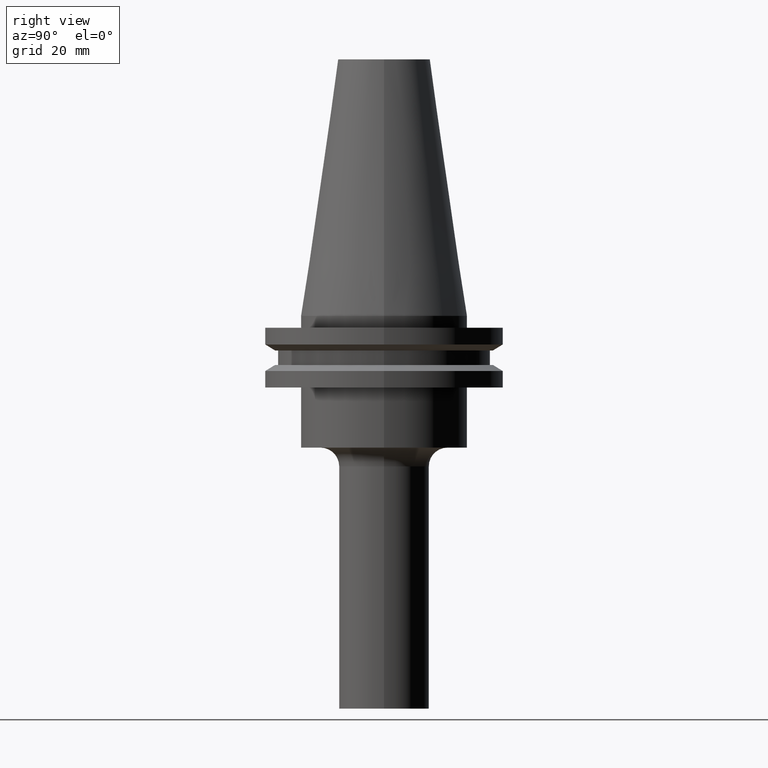
[diagram: clean part render]
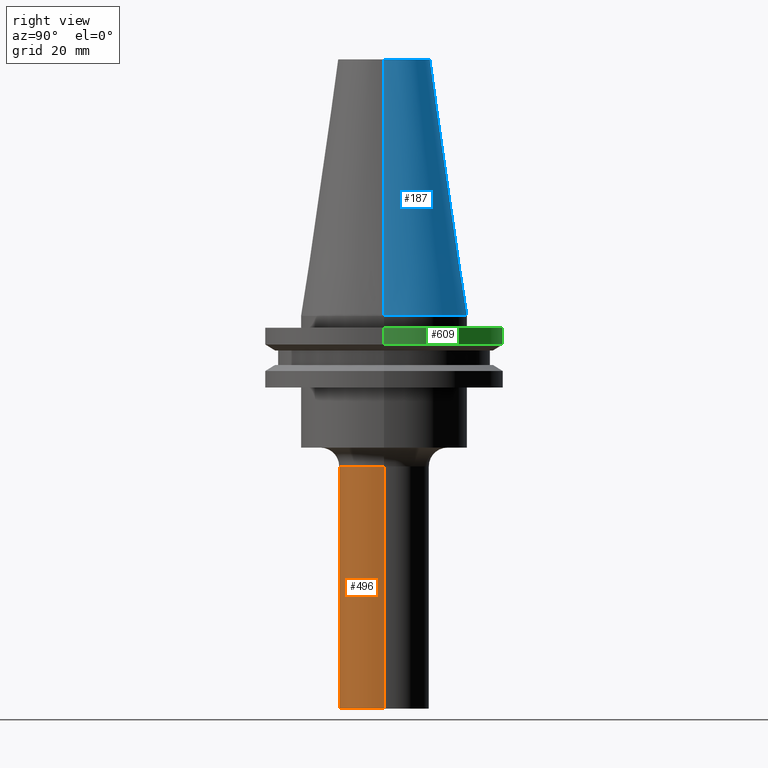
[diagram: same view with three faces highlighted in distinct colors, each labeled with its STEP entity id]
A machine part, right view with three faces highlighted in distinct colors.
Their STEP definitions:

[orange] entity #496 — the highlighted cylindrical surface (partial cylindrical patch) has radius 12 mm, axis along (-0, -0, 1).
#12 = CARTESIAN_POINT ( 'NONE',  ( 12.00000000000000000, 0.000000000000000000, -40.04999999999999716 ) ) ;
#14 = EDGE_LOOP ( 'NONE', ( #296, #497, #472, #23 ) ) ;
#23 = ORIENTED_EDGE ( 'NONE', *, *, #128, .F. ) ;
#26 = VERTEX_POINT ( 'NONE', #114 ) ;
#31 = CARTESIAN_POINT ( 'NONE',  ( -12.00000000000000000, 1.469576158976823947E-15, -104.5000000000000000 ) ) ;
#34 = DIRECTION ( 'NONE',  ( -0.000000000000000000, -0.000000000000000000, 1.000000000000000000 ) ) ;
#38 = LINE ( 'NONE', #285, #692 ) ;
#75 = EDGE_CURVE ( 'NONE', #26, #679, #166, .T. ) ;
#105 = AXIS2_PLACEMENT_3D ( 'NONE', #258, #735, #615 ) ;
#114 = CARTESIAN_POINT ( 'NONE',  ( 12.00000000000000000, 0.000000000000000000, -104.5000000000000000 ) ) ;
#118 = DIRECTION ( 'NONE',  ( -0.000000000000000000, -0.000000000000000000, 1.000000000000000000 ) ) ;
#125 = CYLINDRICAL_SURFACE ( 'NONE', #470, 12.00000000000000000 ) ;
#128 = EDGE_CURVE ( 'NONE', #238, #679, #440, .T. ) ;
#166 = LINE ( 'NONE', #583, #565 ) ;
#229 = DIRECTION ( 'NONE',  ( 1.000000000000000000, 0.000000000000000000, 0.000000000000000000 ) ) ;
#238 = VERTEX_POINT ( 'NONE', #762 ) ;
#245 = CIRCLE ( 'NONE', #342, 12.00000000000000000 ) ;
#258 = CARTESIAN_POINT ( 'NONE',  ( 0.000000000000000000, 0.000000000000000000, -40.04999999999999716 ) ) ;
#285 = CARTESIAN_POINT ( 'NONE',  ( -12.00000000000000000, 1.469576158976823947E-15, 0.000000000000000000 ) ) ;
#296 = ORIENTED_EDGE ( 'NONE', *, *, #299, .F. ) ;
#299 = EDGE_CURVE ( 'NONE', #776, #238, #38, .T. ) ;
#336 = DIRECTION ( 'NONE',  ( 1.000000000000000000, 0.000000000000000000, 0.000000000000000000 ) ) ;
#342 = AXIS2_PLACEMENT_3D ( 'NONE', #741, #34, #336 ) ;
#440 = CIRCLE ( 'NONE', #105, 12.00000000000000000 ) ;
#466 = DIRECTION ( 'NONE',  ( -0.000000000000000000, -0.000000000000000000, 1.000000000000000000 ) ) ;
#470 = AXIS2_PLACEMENT_3D ( 'NONE', #643, #466, #229 ) ;
#472 = ORIENTED_EDGE ( 'NONE', *, *, #75, .T. ) ;
#496 = ADVANCED_FACE ( 'NONE', ( #764 ), #125, .T. ) ;
#497 = ORIENTED_EDGE ( 'NONE', *, *, #710, .T. ) ;
#565 = VECTOR ( 'NONE', #118, 1000.000000000000000 ) ;
#573 = DIRECTION ( 'NONE',  ( -0.000000000000000000, -0.000000000000000000, 1.000000000000000000 ) ) ;
#583 = CARTESIAN_POINT ( 'NONE',  ( 12.00000000000000000, 0.000000000000000000, 0.000000000000000000 ) ) ;
#615 = DIRECTION ( 'NONE',  ( 1.000000000000000000, 0.000000000000000000, 0.000000000000000000 ) ) ;
#643 = CARTESIAN_POINT ( 'NONE',  ( 0.000000000000000000, 0.000000000000000000, 0.000000000000000000 ) ) ;
#679 = VERTEX_POINT ( 'NONE', #12 ) ;
#692 = VECTOR ( 'NONE', #573, 1000.000000000000000 ) ;
#710 = EDGE_CURVE ( 'NONE', #776, #26, #245, .T. ) ;
#735 = DIRECTION ( 'NONE',  ( -0.000000000000000000, -0.000000000000000000, 1.000000000000000000 ) ) ;
#741 = CARTESIAN_POINT ( 'NONE',  ( 0.000000000000000000, 0.000000000000000000, -104.5000000000000000 ) ) ;
#762 = CARTESIAN_POINT ( 'NONE',  ( -12.00000000000000000, 1.469576158976823947E-15, -40.04999999999999716 ) ) ;
#764 = FACE_OUTER_BOUND ( 'NONE', #14, .T. ) ;
#776 = VERTEX_POINT ( 'NONE', #31 ) ;

[blue] entity #187 — the highlighted conical surface has half-angle 8.297 deg.
#35 = EDGE_CURVE ( 'NONE', #186, #612, #143, .T. ) ;
#62 = ORIENTED_EDGE ( 'NONE', *, *, #222, .F. ) ;
#143 = CIRCLE ( 'NONE', #315, 12.27178102086201150 ) ;
#178 = DIRECTION ( 'NONE',  ( 0.000000000000000000, 0.000000000000000000, -1.000000000000000000 ) ) ;
#186 = VERTEX_POINT ( 'NONE', #197 ) ;
#187 = ADVANCED_FACE ( 'NONE', ( #503 ), #480, .T. ) ;
#191 = EDGE_CURVE ( 'NONE', #326, #367, #641, .T. ) ;
#194 = VECTOR ( 'NONE', #689, 999.9999999999998863 ) ;
#197 = CARTESIAN_POINT ( 'NONE',  ( 12.27178102086201150, 2.112318622904291439E-15, 68.25000000000000000 ) ) ;
#222 = EDGE_CURVE ( 'NONE', #612, #367, #756, .T. ) ;
#243 = AXIS2_PLACEMENT_3D ( 'NONE', #355, #594, #725 ) ;
#251 = ORIENTED_EDGE ( 'NONE', *, *, #191, .T. ) ;
#261 = CARTESIAN_POINT ( 'NONE',  ( -12.27178102086201150, 0.000000000000000000, 68.25000000000000000 ) ) ;
#270 = CARTESIAN_POINT ( 'NONE',  ( -22.22500000000000142, 0.000000000000000000, 0.000000000000000000 ) ) ;
#278 = DIRECTION ( 'NONE',  ( 1.000000000000000000, 0.000000000000000000, 0.000000000000000000 ) ) ;
#288 = CARTESIAN_POINT ( 'NONE',  ( 0.000000000000000000, 0.000000000000000000, 68.25000000000000000 ) ) ;
#304 = VECTOR ( 'NONE', #458, 999.9999999999998863 ) ;
#315 = AXIS2_PLACEMENT_3D ( 'NONE', #288, #351, #278 ) ;
#325 = EDGE_CURVE ( 'NONE', #186, #326, #461, .T. ) ;
#326 = VERTEX_POINT ( 'NONE', #519 ) ;
#348 = EDGE_LOOP ( 'NONE', ( #504, #673, #251, #62 ) ) ;
#351 = DIRECTION ( 'NONE',  ( -0.000000000000000000, -0.000000000000000000, 1.000000000000000000 ) ) ;
#355 = CARTESIAN_POINT ( 'NONE',  ( 0.000000000000000000, 0.000000000000000000, 0.000000000000000000 ) ) ;
#367 = VERTEX_POINT ( 'NONE', #445 ) ;
#412 = CARTESIAN_POINT ( 'NONE',  ( 0.000000000000000000, 0.000000000000000000, 0.000000000000000000 ) ) ;
#445 = CARTESIAN_POINT ( 'NONE',  ( -22.22500000000000142, 0.000000000000000000, 0.000000000000000000 ) ) ;
#458 = DIRECTION ( 'NONE',  ( -0.1443082272672999711, 0.000000000000000000, -0.9895327864921755756 ) ) ;
#461 = LINE ( 'NONE', #512, #194 ) ;
#480 = CONICAL_SURFACE ( 'NONE', #602, 22.22500000000000142, 0.1448138465474119174 ) ;
#503 = FACE_OUTER_BOUND ( 'NONE', #348, .T. ) ;
#504 = ORIENTED_EDGE ( 'NONE', *, *, #35, .F. ) ;
#512 = CARTESIAN_POINT ( 'NONE',  ( 22.22500000000000142, 2.721777511104992849E-15, 0.000000000000000000 ) ) ;
#519 = CARTESIAN_POINT ( 'NONE',  ( 22.22500000000000142, 2.721777511104992849E-15, 0.000000000000000000 ) ) ;
#594 = DIRECTION ( 'NONE',  ( -0.000000000000000000, -0.000000000000000000, 1.000000000000000000 ) ) ;
#602 = AXIS2_PLACEMENT_3D ( 'NONE', #412, #178, #650 ) ;
#612 = VERTEX_POINT ( 'NONE', #261 ) ;
#641 = CIRCLE ( 'NONE', #243, 22.22500000000000142 ) ;
#650 = DIRECTION ( 'NONE',  ( -1.000000000000000000, 0.000000000000000000, 0.000000000000000000 ) ) ;
#673 = ORIENTED_EDGE ( 'NONE', *, *, #325, .T. ) ;
#689 = DIRECTION ( 'NONE',  ( 0.1443082272672999711, 1.767266086135276757E-17, -0.9895327864921755756 ) ) ;
#725 = DIRECTION ( 'NONE',  ( 1.000000000000000000, 0.000000000000000000, 0.000000000000000000 ) ) ;
#756 = LINE ( 'NONE', #270, #304 ) ;

[green] entity #609 — the highlighted cylindrical surface (partial cylindrical patch) has radius 31.75 mm, axis along (-0, -0, 1).
#15 = CARTESIAN_POINT ( 'NONE',  ( 0.000000000000000000, 0.000000000000000000, 68.25000000000000000 ) ) ;
#49 = LINE ( 'NONE', #117, #107 ) ;
#100 = CARTESIAN_POINT ( 'NONE',  ( -31.75000000000000000, 3.888253587292846476E-15, -7.605276606597335842 ) ) ;
#107 = VECTOR ( 'NONE', #598, 1000.000000000000000 ) ;
#117 = CARTESIAN_POINT ( 'NONE',  ( -31.75000000000000000, 3.888253587292846476E-15, 68.25000000000000000 ) ) ;
#139 = DIRECTION ( 'NONE',  ( 1.000000000000000000, 0.000000000000000000, 0.000000000000000000 ) ) ;
#159 = VERTEX_POINT ( 'NONE', #499 ) ;
#168 = DIRECTION ( 'NONE',  ( -0.000000000000000000, -0.000000000000000000, 1.000000000000000000 ) ) ;
#174 = CARTESIAN_POINT ( 'NONE',  ( 0.000000000000000000, 0.000000000000000000, -3.174999999999997158 ) ) ;
#184 = AXIS2_PLACEMENT_3D ( 'NONE', #15, #483, #139 ) ;
#224 = CARTESIAN_POINT ( 'NONE',  ( 31.75000000000000000, 0.000000000000000000, -3.174999999999997158 ) ) ;
#247 = VERTEX_POINT ( 'NONE', #100 ) ;
#249 = CARTESIAN_POINT ( 'NONE',  ( 31.75000000000000000, 0.000000000000000000, -7.605276606597335842 ) ) ;
#257 = CIRCLE ( 'NONE', #428, 31.75000000000000000 ) ;
#290 = DIRECTION ( 'NONE',  ( -0.000000000000000000, -0.000000000000000000, 1.000000000000000000 ) ) ;
#350 = CARTESIAN_POINT ( 'NONE',  ( 31.75000000000000000, 0.000000000000000000, 68.25000000000000000 ) ) ;
#363 = EDGE_LOOP ( 'NONE', ( #446, #550, #654, #484 ) ) ;
#364 = FACE_OUTER_BOUND ( 'NONE', #363, .T. ) ;
#380 = CYLINDRICAL_SURFACE ( 'NONE', #184, 31.75000000000000000 ) ;
#387 = EDGE_CURVE ( 'NONE', #247, #159, #49, .T. ) ;
#408 = DIRECTION ( 'NONE',  ( 1.000000000000000000, 0.000000000000000000, 0.000000000000000000 ) ) ;
#428 = AXIS2_PLACEMENT_3D ( 'NONE', #174, #290, #408 ) ;
#446 = ORIENTED_EDGE ( 'NONE', *, *, #520, .T. ) ;
#469 = DIRECTION ( 'NONE',  ( -0.000000000000000000, -0.000000000000000000, 1.000000000000000000 ) ) ;
#483 = DIRECTION ( 'NONE',  ( -0.000000000000000000, -0.000000000000000000, 1.000000000000000000 ) ) ;
#484 = ORIENTED_EDGE ( 'NONE', *, *, #500, .F. ) ;
#499 = CARTESIAN_POINT ( 'NONE',  ( -31.75000000000000000, 3.888253587292846476E-15, -3.174999999999997158 ) ) ;
#500 = EDGE_CURVE ( 'NONE', #636, #768, #701, .T. ) ;
#506 = CIRCLE ( 'NONE', #618, 31.75000000000000000 ) ;
#520 = EDGE_CURVE ( 'NONE', #636, #247, #506, .T. ) ;
#525 = EDGE_CURVE ( 'NONE', #768, #159, #257, .T. ) ;
#550 = ORIENTED_EDGE ( 'NONE', *, *, #387, .T. ) ;
#567 = VECTOR ( 'NONE', #168, 1000.000000000000000 ) ;
#598 = DIRECTION ( 'NONE',  ( -0.000000000000000000, -0.000000000000000000, 1.000000000000000000 ) ) ;
#609 = ADVANCED_FACE ( 'NONE', ( #364 ), #380, .T. ) ;
#618 = AXIS2_PLACEMENT_3D ( 'NONE', #767, #469, #705 ) ;
#636 = VERTEX_POINT ( 'NONE', #249 ) ;
#654 = ORIENTED_EDGE ( 'NONE', *, *, #525, .F. ) ;
#701 = LINE ( 'NONE', #350, #567 ) ;
#705 = DIRECTION ( 'NONE',  ( 1.000000000000000000, 0.000000000000000000, 0.000000000000000000 ) ) ;
#767 = CARTESIAN_POINT ( 'NONE',  ( 0.000000000000000000, 0.000000000000000000, -7.605276606597335842 ) ) ;
#768 = VERTEX_POINT ( 'NONE', #224 ) ;